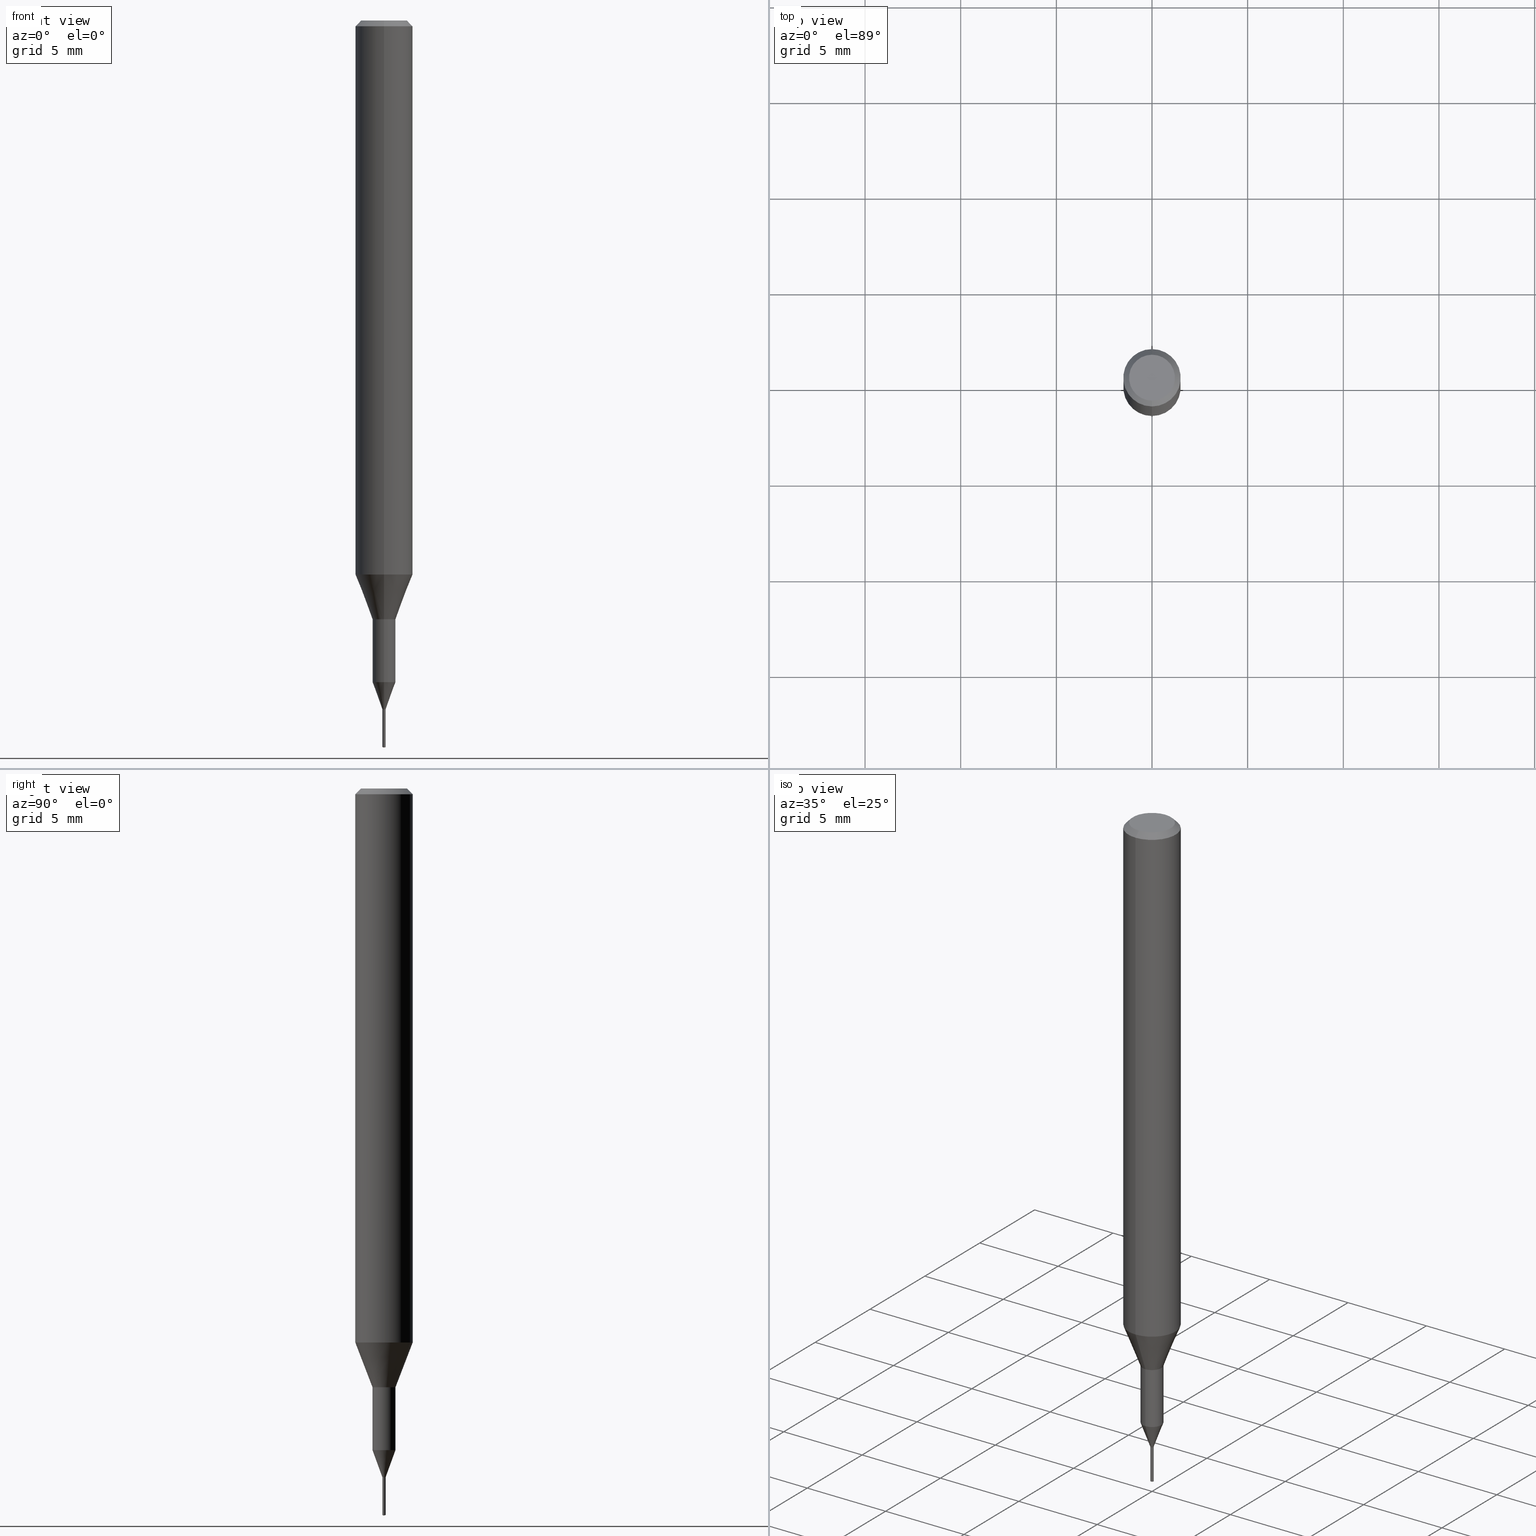
[diagram: canonical four-view strip — front | top / right | iso, engineering-drawing reading convention]
A machine part, canonical four-view strip (front | top / right | iso — engineering-drawing reading convention). The complete STEP part file that produces these views, byte-faithful:
ISO-10303-21;
HEADER;
FILE_DESCRIPTION(('no description'),'unknown implementation level');
FILE_NAME('C-UMD2017-020-Huellk.stp','  ',('CIMSOURCE GmbH'),('CADClick - KiM GmbH - www.kimweb.de'),'unknown preprocess','ACIS','unknown authorization');
FILE_SCHEMA(('automotive_design'));
ENDSEC;
DATA;
#1=MECHANICAL_DESIGN_GEOMETRIC_PRESENTATION_REPRESENTATION(' ',(#14,#15,#16,#17,#18,#19,#20,#21,#22,#23,#24,#25,#26,#27,#28,#29,#30,#31,#32,#33,#34,#35,#36,#37,#38,#39,#40,#41,#42,#43,#44,#45,#46,#47,#48,#49,#50,#51,#52,#53,#54,#55,#56,#57,#58,#59,#60,#61,#62,#63,#64,#65,#66,#67,#68,#69,#70,#71,#72,#73,#74,#75,#76,#77,#78,#79,#80,#81,#82,#83,#84,#85,#86,#87,#88,#89,#90,#91,#92),#10);
#2=PRODUCT_DEFINITION_CONTEXT('',#93,'design');
#3=APPLICATION_PROTOCOL_DEFINITION('INTERNATIONAL STANDARD','automotive_design',1994,#93);
#4=PRODUCT_CATEGORY_RELATIONSHIP('NONE','NONE',#94,#95);
#5=SHAPE_DEFINITION_REPRESENTATION(#96,#97);
#6=PRODUCT_DEFINITION_CONTEXT('',#98,'design');
#7=APPLICATION_PROTOCOL_DEFINITION('INTERNATIONAL STANDARD','automotive_design',1994,#98);
#8=PRODUCT_CATEGORY_RELATIONSHIP('NONE','NONE',#99,#100);
#9=SHAPE_DEFINITION_REPRESENTATION(#101,#102);
#10= (GEOMETRIC_REPRESENTATION_CONTEXT(3)GLOBAL_UNCERTAINTY_ASSIGNED_CONTEXT((#105))GLOBAL_UNIT_ASSIGNED_CONTEXT((#107,#108,#109))REPRESENTATION_CONTEXT('NONE','WORKSPACE'));
#14=STYLED_ITEM('',(#111),#112);
#15=STYLED_ITEM('',(#113),#114);
#16=STYLED_ITEM('',(#115),#116);
#17=STYLED_ITEM('',(#117),#118);
#18=STYLED_ITEM('',(#119),#120);
#19=STYLED_ITEM('',(#121),#122);
#20=STYLED_ITEM('',(#123),#124);
#21=STYLED_ITEM('',(#125),#126);
#22=STYLED_ITEM('',(#127),#128);
#23=STYLED_ITEM('',(#129),#130);
#24=STYLED_ITEM('',(#131),#132);
#25=STYLED_ITEM('',(#133),#134);
#26=STYLED_ITEM('',(#135),#136);
#27=STYLED_ITEM('',(#137),#138);
#28=STYLED_ITEM('',(#139),#140);
#29=STYLED_ITEM('',(#141),#142);
#30=STYLED_ITEM('',(#143),#144);
#31=STYLED_ITEM('',(#145),#146);
#32=STYLED_ITEM('',(#147),#148);
#33=STYLED_ITEM('',(#149),#150);
#34=STYLED_ITEM('',(#151),#152);
#35=STYLED_ITEM('',(#153),#154);
#36=STYLED_ITEM('',(#155),#156);
#37=STYLED_ITEM('',(#157),#158);
#38=STYLED_ITEM('',(#159),#160);
#39=STYLED_ITEM('',(#161),#162);
#40=STYLED_ITEM('',(#163),#164);
#41=STYLED_ITEM('',(#165),#166);
#42=STYLED_ITEM('',(#167),#168);
#43=STYLED_ITEM('',(#169),#170);
#44=STYLED_ITEM('',(#171),#172);
#45=STYLED_ITEM('',(#173),#174);
#46=STYLED_ITEM('',(#175),#176);
#47=STYLED_ITEM('',(#177),#178);
#48=STYLED_ITEM('',(#179),#180);
#49=STYLED_ITEM('',(#181),#182);
#50=STYLED_ITEM('',(#183),#184);
#51=STYLED_ITEM('',(#185),#186);
#52=STYLED_ITEM('',(#187),#188);
#53=STYLED_ITEM('',(#189),#190);
#54=STYLED_ITEM('',(#191),#192);
#55=STYLED_ITEM('',(#193),#194);
#56=STYLED_ITEM('',(#195),#196);
#57=STYLED_ITEM('',(#197),#198);
#58=STYLED_ITEM('',(#199),#200);
#59=STYLED_ITEM('',(#201),#202);
#60=STYLED_ITEM('',(#203),#204);
#61=STYLED_ITEM('',(#205),#206);
#62=STYLED_ITEM('',(#207),#208);
#63=STYLED_ITEM('',(#209),#210);
#64=STYLED_ITEM('',(#211),#212);
#65=STYLED_ITEM('',(#213),#214);
#66=STYLED_ITEM('',(#215),#216);
#67=STYLED_ITEM('',(#217),#218);
#68=STYLED_ITEM('',(#219),#220);
#69=STYLED_ITEM('',(#221),#222);
#70=STYLED_ITEM('',(#223),#224);
#71=STYLED_ITEM('',(#225),#226);
#72=STYLED_ITEM('',(#227),#228);
#73=STYLED_ITEM('',(#229),#230);
#74=STYLED_ITEM('',(#231),#232);
#75=STYLED_ITEM('',(#233),#234);
#76=STYLED_ITEM('',(#235),#236);
#77=STYLED_ITEM('',(#237),#238);
#78=STYLED_ITEM('',(#239),#240);
#79=STYLED_ITEM('',(#241),#242);
#80=STYLED_ITEM('',(#243),#244);
#81=STYLED_ITEM('',(#245),#246);
#82=STYLED_ITEM('',(#247),#248);
#83=STYLED_ITEM('',(#249),#250);
#84=STYLED_ITEM('',(#251),#252);
#85=STYLED_ITEM('',(#253),#254);
#86=STYLED_ITEM('',(#255),#256);
#87=STYLED_ITEM('',(#257),#258);
#88=STYLED_ITEM('',(#259),#260);
#89=STYLED_ITEM('',(#261),#262);
#90=STYLED_ITEM('',(#263),#264);
#91=STYLED_ITEM('',(#265),#266);
#92=STYLED_ITEM('',(#267),#268);
#93=APPLICATION_CONTEXT(' ');
#94=PRODUCT_CATEGORY('part','NONE');
#95=PRODUCT_RELATED_PRODUCT_CATEGORY('detail',' ',(#269));
#96=PRODUCT_DEFINITION_SHAPE('NONE','NONE',#270);
#97=ADVANCED_BREP_SHAPE_REPRESENTATION('1',(#220,#271),#10);
#98=APPLICATION_CONTEXT(' ');
#99=PRODUCT_CATEGORY('part','NONE');
#100=PRODUCT_RELATED_PRODUCT_CATEGORY('detail',' ',(#272));
#101=PRODUCT_DEFINITION_SHAPE('NONE','NONE',#273);
#102=ADVANCED_BREP_SHAPE_REPRESENTATION('2',(#236,#274),#10);
#105=UNCERTAINTY_MEASURE_WITH_UNIT(LENGTH_MEASURE(1.0E-006),#107,'','');
#107= (CONVERSION_BASED_UNIT('MILLIMETRE',#277)LENGTH_UNIT()NAMED_UNIT(#280));
#108= (NAMED_UNIT(#282)PLANE_ANGLE_UNIT()SI_UNIT($,.RADIAN.));
#109= (NAMED_UNIT(#282)SOLID_ANGLE_UNIT()SI_UNIT($,.STERADIAN.));
#111=PRESENTATION_STYLE_ASSIGNMENT((#288));
#112=EDGE_CURVE('',#268,#134,#289,.T.);
#113=PRESENTATION_STYLE_ASSIGNMENT((#290));
#114=EDGE_CURVE('',#154,#240,#291,.T.);
#115=PRESENTATION_STYLE_ASSIGNMENT((#292));
#116=EDGE_CURVE('',#254,#266,#293,.T.);
#117=PRESENTATION_STYLE_ASSIGNMENT((#294));
#118=ADVANCED_FACE('',(#295),#296,.T.);
#119=PRESENTATION_STYLE_ASSIGNMENT((#297));
#120=ADVANCED_FACE('',(#298),#299,.T.);
#121=PRESENTATION_STYLE_ASSIGNMENT((#300));
#122=EDGE_CURVE('',#160,#138,#301,.T.);
#123=PRESENTATION_STYLE_ASSIGNMENT((#302));
#124=ADVANCED_FACE('',(#303),#304,.T.);
#125=PRESENTATION_STYLE_ASSIGNMENT((#305));
#126=EDGE_CURVE('',#226,#254,#306,.T.);
#127=PRESENTATION_STYLE_ASSIGNMENT((#307));
#128=EDGE_CURVE('',#246,#160,#308,.T.);
#129=PRESENTATION_STYLE_ASSIGNMENT((#309));
#130=VERTEX_POINT('',#310);
#131=PRESENTATION_STYLE_ASSIGNMENT((#311));
#132=EDGE_CURVE('',#178,#240,#312,.T.);
#133=PRESENTATION_STYLE_ASSIGNMENT((#313));
#134=VERTEX_POINT('',#314);
#135=PRESENTATION_STYLE_ASSIGNMENT((#315));
#136=EDGE_CURVE('',#178,#238,#316,.T.);
#137=PRESENTATION_STYLE_ASSIGNMENT((#317));
#138=VERTEX_POINT('',#318);
#139=PRESENTATION_STYLE_ASSIGNMENT((#319));
#140=EDGE_CURVE('',#176,#178,#320,.T.);
#141=PRESENTATION_STYLE_ASSIGNMENT((#321));
#142=EDGE_CURVE('',#164,#176,#322,.T.);
#143=PRESENTATION_STYLE_ASSIGNMENT((#323));
#144=EDGE_CURVE('',#130,#226,#324,.T.);
#145=PRESENTATION_STYLE_ASSIGNMENT((#325));
#146=EDGE_CURVE('',#134,#268,#326,.T.);
#147=PRESENTATION_STYLE_ASSIGNMENT((#327));
#148=EDGE_CURVE('',#170,#224,#328,.T.);
#149=PRESENTATION_STYLE_ASSIGNMENT((#329));
#150=ADVANCED_FACE('',(#330),#331,.T.);
#151=PRESENTATION_STYLE_ASSIGNMENT((#332));
#152=ADVANCED_FACE('',(#333),#334,.T.);
#153=PRESENTATION_STYLE_ASSIGNMENT((#335));
#154=VERTEX_POINT('',#336);
#155=PRESENTATION_STYLE_ASSIGNMENT((#337));
#156=EDGE_CURVE('',#226,#224,#338,.T.);
#157=PRESENTATION_STYLE_ASSIGNMENT((#339));
#158=EDGE_CURVE('',#254,#226,#340,.T.);
#159=PRESENTATION_STYLE_ASSIGNMENT((#341));
#160=VERTEX_POINT('',#342);
#161=PRESENTATION_STYLE_ASSIGNMENT((#343));
#162=EDGE_CURVE('',#160,#200,#344,.T.);
#163=PRESENTATION_STYLE_ASSIGNMENT((#345));
#164=VERTEX_POINT('',#346);
#165=PRESENTATION_STYLE_ASSIGNMENT((#347));
#166=EDGE_CURVE('',#138,#190,#348,.T.);
#167=PRESENTATION_STYLE_ASSIGNMENT((#349));
#168=ADVANCED_FACE('',(#350),#351,.T.);
#169=PRESENTATION_STYLE_ASSIGNMENT((#352));
#170=VERTEX_POINT('',#353);
#171=PRESENTATION_STYLE_ASSIGNMENT((#354));
#172=ADVANCED_FACE('',(#355),#356,.T.);
#173=PRESENTATION_STYLE_ASSIGNMENT((#357));
#174=EDGE_CURVE('',#190,#212,#358,.T.);
#175=PRESENTATION_STYLE_ASSIGNMENT((#359));
#176=VERTEX_POINT('',#360);
#177=PRESENTATION_STYLE_ASSIGNMENT((#361));
#178=VERTEX_POINT('',#362);
#179=PRESENTATION_STYLE_ASSIGNMENT((#363));
#180=EDGE_CURVE('',#190,#246,#364,.T.);
#181=PRESENTATION_STYLE_ASSIGNMENT((#365));
#182=EDGE_CURVE('',#238,#164,#366,.T.);
#183=PRESENTATION_STYLE_ASSIGNMENT((#367));
#184=EDGE_CURVE('',#212,#202,#368,.T.);
#185=PRESENTATION_STYLE_ASSIGNMENT((#369));
#186=EDGE_CURVE('',#224,#170,#370,.T.);
#187=PRESENTATION_STYLE_ASSIGNMENT((#371));
#188=EDGE_CURVE('',#238,#178,#372,.T.);
#189=PRESENTATION_STYLE_ASSIGNMENT((#373));
#190=VERTEX_POINT('',#374);
#191=PRESENTATION_STYLE_ASSIGNMENT((#375));
#192=EDGE_CURVE('',#202,#212,#376,.T.);
#193=PRESENTATION_STYLE_ASSIGNMENT((#377));
#194=ADVANCED_FACE('',(#378),#379,.T.);
#195=PRESENTATION_STYLE_ASSIGNMENT((#380));
#196=ADVANCED_FACE('',(#381),#382,.T.);
#197=PRESENTATION_STYLE_ASSIGNMENT((#383));
#198=EDGE_CURVE('',#154,#238,#384,.T.);
#199=PRESENTATION_STYLE_ASSIGNMENT((#385));
#200=VERTEX_POINT('',#386);
#201=PRESENTATION_STYLE_ASSIGNMENT((#387));
#202=VERTEX_POINT('',#388);
#203=PRESENTATION_STYLE_ASSIGNMENT((#389));
#204=EDGE_CURVE('',#130,#266,#390,.T.);
#205=PRESENTATION_STYLE_ASSIGNMENT((#391));
#206=EDGE_CURVE('',#138,#160,#392,.T.);
#207=PRESENTATION_STYLE_ASSIGNMENT((#393));
#208=ADVANCED_FACE('',(#394),#395,.T.);
#209=PRESENTATION_STYLE_ASSIGNMENT((#396));
#210=EDGE_CURVE('',#176,#164,#397,.T.);
#211=PRESENTATION_STYLE_ASSIGNMENT((#398));
#212=VERTEX_POINT('',#399);
#213=PRESENTATION_STYLE_ASSIGNMENT((#400));
#214=ADVANCED_FACE('',(#401),#402,.T.);
#215=PRESENTATION_STYLE_ASSIGNMENT((#403));
#216=ADVANCED_FACE('',(#404),#405,.T.);
#217=PRESENTATION_STYLE_ASSIGNMENT((#406));
#218=EDGE_CURVE('',#266,#130,#407,.T.);
#219=PRESENTATION_STYLE_ASSIGNMENT((#408));
#220=MANIFOLD_SOLID_BREP('1',#409);
#221=PRESENTATION_STYLE_ASSIGNMENT((#410));
#222=EDGE_CURVE('',#170,#254,#411,.T.);
#223=PRESENTATION_STYLE_ASSIGNMENT((#412));
#224=VERTEX_POINT('',#413);
#225=PRESENTATION_STYLE_ASSIGNMENT((#414));
#226=VERTEX_POINT('',#415);
#227=PRESENTATION_STYLE_ASSIGNMENT((#416));
#228=EDGE_CURVE('',#200,#138,#417,.T.);
#229=PRESENTATION_STYLE_ASSIGNMENT((#418));
#230=EDGE_CURVE('',#246,#190,#419,.T.);
#231=PRESENTATION_STYLE_ASSIGNMENT((#420));
#232=ADVANCED_FACE('',(#421,#422),#423,.T.);
#233=PRESENTATION_STYLE_ASSIGNMENT((#424));
#234=EDGE_CURVE('',#240,#154,#425,.T.);
#235=PRESENTATION_STYLE_ASSIGNMENT((#426));
#236=MANIFOLD_SOLID_BREP('2',#427);
#237=PRESENTATION_STYLE_ASSIGNMENT((#428));
#238=VERTEX_POINT('',#429);
#239=PRESENTATION_STYLE_ASSIGNMENT((#430));
#240=VERTEX_POINT('',#431);
#241=PRESENTATION_STYLE_ASSIGNMENT((#432));
#242=EDGE_CURVE('',#164,#268,#433,.T.);
#243=PRESENTATION_STYLE_ASSIGNMENT((#434));
#244=ADVANCED_FACE('',(#435),#436,.T.);
#245=PRESENTATION_STYLE_ASSIGNMENT((#437));
#246=VERTEX_POINT('',#438);
#247=PRESENTATION_STYLE_ASSIGNMENT((#439));
#248=EDGE_CURVE('',#134,#176,#440,.T.);
#249=PRESENTATION_STYLE_ASSIGNMENT((#441));
#250=ADVANCED_FACE('',(#442),#443,.T.);
#251=PRESENTATION_STYLE_ASSIGNMENT((#444));
#252=EDGE_CURVE('',#202,#246,#445,.T.);
#253=PRESENTATION_STYLE_ASSIGNMENT((#446));
#254=VERTEX_POINT('',#447);
#255=PRESENTATION_STYLE_ASSIGNMENT((#448));
#256=ADVANCED_FACE('',(#449),#450,.T.);
#257=PRESENTATION_STYLE_ASSIGNMENT((#451));
#258=ADVANCED_FACE('',(#452),#453,.T.);
#259=PRESENTATION_STYLE_ASSIGNMENT((#454));
#260=ADVANCED_FACE('',(#455),#456,.T.);
#261=PRESENTATION_STYLE_ASSIGNMENT((#457));
#262=ADVANCED_FACE('',(#458),#459,.T.);
#263=PRESENTATION_STYLE_ASSIGNMENT((#460));
#264=ADVANCED_FACE('',(#461),#462,.T.);
#265=PRESENTATION_STYLE_ASSIGNMENT((#463));
#266=VERTEX_POINT('',#464);
#267=PRESENTATION_STYLE_ASSIGNMENT((#465));
#268=VERTEX_POINT('',#466);
#269=PRODUCT('1','1','PART-1-DESC',(#467));
#270=PRODUCT_DEFINITION('NONE','NONE',#468,#2);
#271=AXIS2_PLACEMENT_3D('',#469,#470,#471);
#272=PRODUCT('2','2','PART-2-DESC',(#472));
#273=PRODUCT_DEFINITION('NONE','NONE',#473,#6);
#274=AXIS2_PLACEMENT_3D('',#474,#475,#476);
#277=LENGTH_MEASURE_WITH_UNIT(LENGTH_MEASURE(1.0),#477);
#280=DIMENSIONAL_EXPONENTS(1.0,0.0,0.0,0.0,0.0,0.0,0.0);
#282=DIMENSIONAL_EXPONENTS(0.0,0.0,0.0,0.0,0.0,0.0,0.0);
#288=CURVE_STYLE('',#478,POSITIVE_LENGTH_MEASURE(1.0E-006),#479);
#289=CIRCLE('',#480,1.2);
#290=CURVE_STYLE('',#481,POSITIVE_LENGTH_MEASURE(1.0E-006),#482);
#291=CIRCLE('',#483,0.6);
#292=CURVE_STYLE('',#484,POSITIVE_LENGTH_MEASURE(1.0E-006),#485);
#293=LINE('',#486,#487);
#294=SURFACE_STYLE_USAGE(.BOTH.,#488);
#295=FACE_OUTER_BOUND('',#489,.T.);
#296=CONICAL_SURFACE('',#490,0.0425,1.30899695388712);
#297=SURFACE_STYLE_USAGE(.BOTH.,#491);
#298=FACE_OUTER_BOUND('',#492,.T.);
#299=PLANE('',#493);
#300=CURVE_STYLE('',#494,POSITIVE_LENGTH_MEASURE(1.0E-006),#495);
#301=CIRCLE('',#496,0.085);
#302=SURFACE_STYLE_USAGE(.BOTH.,#497);
#303=FACE_OUTER_BOUND('',#498,.T.);
#304=CONICAL_SURFACE('',#499,1.35,0.785398163397447);
#305=CURVE_STYLE('',#500,POSITIVE_LENGTH_MEASURE(1.0E-006),#501);
#306=CIRCLE('',#502,0.59995);
#307=CURVE_STYLE('',#503,POSITIVE_LENGTH_MEASURE(1.0E-006),#504);
#308=LINE('',#505,#506);
#309=POINT_STYLE(' ',#507,POSITIVE_LENGTH_MEASURE(1.0E-006),#508);
#310=CARTESIAN_POINT('',(0.0,0.59995,-31.3));
#311=CURVE_STYLE('',#509,POSITIVE_LENGTH_MEASURE(1.0E-006),#510);
#312=LINE('',#511,#512);
#313=POINT_STYLE(' ',#513,POSITIVE_LENGTH_MEASURE(1.0E-006),#514);
#314=CARTESIAN_POINT('',(0.0,1.2,0.0));
#315=CURVE_STYLE('',#515,POSITIVE_LENGTH_MEASURE(1.0E-006),#516);
#316=CIRCLE('',#517,1.5);
#317=POINT_STYLE(' ',#518,POSITIVE_LENGTH_MEASURE(1.0E-006),#519);
#318=CARTESIAN_POINT('',(0.085,1.04091540074902E-017,-37.97722432));
#319=CURVE_STYLE('',#520,POSITIVE_LENGTH_MEASURE(1.0E-006),#521);
#320=LINE('',#522,#523);
#321=CURVE_STYLE('',#524,POSITIVE_LENGTH_MEASURE(1.0E-006),#525);
#322=CIRCLE('',#526,1.5);
#323=CURVE_STYLE('',#527,POSITIVE_LENGTH_MEASURE(1.0E-006),#528);
#324=LINE('',#529,#530);
#325=CURVE_STYLE('',#531,POSITIVE_LENGTH_MEASURE(1.0E-006),#532);
#326=CIRCLE('',#533,1.2);
#327=CURVE_STYLE('',#534,POSITIVE_LENGTH_MEASURE(1.0E-006),#535);
#328=CIRCLE('',#536,0.0850363922261483);
#329=SURFACE_STYLE_USAGE(.BOTH.,#537);
#330=FACE_OUTER_BOUND('',#538,.T.);
#331=CYLINDRICAL_SURFACE('',#539,0.59995);
#332=SURFACE_STYLE_USAGE(.BOTH.,#540);
#333=FACE_OUTER_BOUND('',#541,.T.);
#334=PLANE('',#542);
#335=POINT_STYLE(' ',#543,POSITIVE_LENGTH_MEASURE(1.0E-006),#544);
#336=CARTESIAN_POINT('',(7.34763812293426E-017,-0.6,-31.3));
#337=CURVE_STYLE('',#545,POSITIVE_LENGTH_MEASURE(1.0E-006),#546);
#338=LINE('',#547,#548);
#339=CURVE_STYLE('',#549,POSITIVE_LENGTH_MEASURE(1.0E-006),#550);
#340=CIRCLE('',#551,0.59995);
#341=POINT_STYLE(' ',#552,POSITIVE_LENGTH_MEASURE(1.0E-006),#553);
#342=CARTESIAN_POINT('',(-0.085,0.0,-37.97722432));
#343=CURVE_STYLE('',#554,POSITIVE_LENGTH_MEASURE(1.0E-006),#555);
#344=LINE('',#556,#557);
#345=POINT_STYLE(' ',#558,POSITIVE_LENGTH_MEASURE(1.0E-006),#559);
#346=CARTESIAN_POINT('',(1.83690953073357E-016,-1.5,-0.300000000000001));
#347=CURVE_STYLE('',#560,POSITIVE_LENGTH_MEASURE(1.0E-006),#561);
#348=LINE('',#562,#563);
#349=SURFACE_STYLE_USAGE(.BOTH.,#564);
#350=FACE_OUTER_BOUND('',#565,.T.);
#351=CONICAL_SURFACE('',#566,1.05,0.366459241971866);
#352=POINT_STYLE(' ',#567,POSITIVE_LENGTH_MEASURE(1.0E-006),#568);
#353=CARTESIAN_POINT('',(1.04136106226273E-017,-0.0850363922261483,-35.9999));
#354=SURFACE_STYLE_USAGE(.BOTH.,#569);
#355=FACE_OUTER_BOUND('',#570,.T.);
#356=CONICAL_SURFACE('',#571,0.0425,1.30899695388712);
#357=CURVE_STYLE('',#572,POSITIVE_LENGTH_MEASURE(1.0E-006),#573);
#358=LINE('',#574,#575);
#359=POINT_STYLE(' ',#576,POSITIVE_LENGTH_MEASURE(1.0E-006),#577);
#360=CARTESIAN_POINT('',(0.0,1.5,-0.300000000000001));
#361=POINT_STYLE(' ',#578,POSITIVE_LENGTH_MEASURE(1.0E-006),#579);
#362=CARTESIAN_POINT('',(0.0,1.5,-28.955));
#363=CURVE_STYLE('',#580,POSITIVE_LENGTH_MEASURE(1.0E-006),#581);
#364=CIRCLE('',#582,0.085);
#365=CURVE_STYLE('',#583,POSITIVE_LENGTH_MEASURE(1.0E-006),#584);
#366=LINE('',#585,#586);
#367=CURVE_STYLE('',#587,POSITIVE_LENGTH_MEASURE(1.0E-006),#588);
#368=CIRCLE('',#589,0.0860363957597172);
#369=CURVE_STYLE('',#590,POSITIVE_LENGTH_MEASURE(1.0E-006),#591);
#370=CIRCLE('',#592,0.0850363922261483);
#371=CURVE_STYLE('',#593,POSITIVE_LENGTH_MEASURE(1.0E-006),#594);
#372=CIRCLE('',#595,1.5);
#373=POINT_STYLE(' ',#596,POSITIVE_LENGTH_MEASURE(1.0E-006),#597);
#374=CARTESIAN_POINT('',(0.085,1.04091540074902E-017,-36.0));
#375=CURVE_STYLE('',#598,POSITIVE_LENGTH_MEASURE(1.0E-006),#599);
#376=CIRCLE('',#600,0.0860363957597172);
#377=SURFACE_STYLE_USAGE(.BOTH.,#601);
#378=FACE_OUTER_BOUND('',#602,.T.);
#379=CONICAL_SURFACE('',#603,1.05,0.366459241971866);
#380=SURFACE_STYLE_USAGE(.BOTH.,#604);
#381=FACE_OUTER_BOUND('',#605,.T.);
#382=PLANE('',#606);
#383=CURVE_STYLE('',#607,POSITIVE_LENGTH_MEASURE(1.0E-006),#608);
#384=LINE('',#609,#610);
#385=POINT_STYLE(' ',#611,POSITIVE_LENGTH_MEASURE(1.0E-006),#612);
#386=CARTESIAN_POINT('',(0.0,0.0,-38.0));
#387=POINT_STYLE(' ',#613,POSITIVE_LENGTH_MEASURE(1.0E-006),#614);
#388=CARTESIAN_POINT('',(-0.0860363957597172,0.0,-35.9999));
#389=CURVE_STYLE('',#615,POSITIVE_LENGTH_MEASURE(1.0E-006),#616);
#390=CIRCLE('',#617,0.59995);
#391=CURVE_STYLE('',#618,POSITIVE_LENGTH_MEASURE(1.0E-006),#619);
#392=CIRCLE('',#620,0.085);
#393=SURFACE_STYLE_USAGE(.BOTH.,#621);
#394=FACE_OUTER_BOUND('',#622,.T.);
#395=CONICAL_SURFACE('',#623,1.35,0.785398163397447);
#396=CURVE_STYLE('',#624,POSITIVE_LENGTH_MEASURE(1.0E-006),#625);
#397=CIRCLE('',#626,1.5);
#398=POINT_STYLE(' ',#627,POSITIVE_LENGTH_MEASURE(1.0E-006),#628);
#399=CARTESIAN_POINT('',(0.0860363957597172,1.05360716907326E-017,-35.9999));
#400=SURFACE_STYLE_USAGE(.BOTH.,#629);
#401=FACE_OUTER_BOUND('',#630,.T.);
#402=CONICAL_SURFACE('',#631,0.0855181978798586,1.4746058624187);
#403=SURFACE_STYLE_USAGE(.BOTH.,#632);
#404=FACE_OUTER_BOUND('',#633,.T.);
#405=CONICAL_SURFACE('',#634,0.342493196113074,0.349023488713125);
#406=CURVE_STYLE('',#635,POSITIVE_LENGTH_MEASURE(1.0E-006),#636);
#407=CIRCLE('',#637,0.59995);
#408=SURFACE_STYLE_USAGE(.BOTH.,#638);
#409=CLOSED_SHELL('',(#216,#150,#168,#262,#124,#152,#208,#260,#194,#232,#256,#258,#196));
#410=CURVE_STYLE('',#639,POSITIVE_LENGTH_MEASURE(1.0E-006),#640);
#411=LINE('',#641,#642);
#412=POINT_STYLE(' ',#643,POSITIVE_LENGTH_MEASURE(1.0E-006),#644);
#413=CARTESIAN_POINT('',(0.0,0.0850363922261483,-35.9999));
#414=POINT_STYLE(' ',#645,POSITIVE_LENGTH_MEASURE(1.0E-006),#646);
#415=CARTESIAN_POINT('',(0.0,0.59995,-34.585));
#416=CURVE_STYLE('',#647,POSITIVE_LENGTH_MEASURE(1.0E-006),#648);
#417=LINE('',#649,#650);
#418=CURVE_STYLE('',#651,POSITIVE_LENGTH_MEASURE(1.0E-006),#652);
#419=CIRCLE('',#653,0.085);
#420=SURFACE_STYLE_USAGE(.BOTH.,#654);
#421=FACE_BOUND('',#655,.T.);
#422=FACE_OUTER_BOUND('',#656,.T.);
#423=PLANE('',#657);
#424=CURVE_STYLE('',#658,POSITIVE_LENGTH_MEASURE(1.0E-006),#659);
#425=CIRCLE('',#660,0.6);
#426=SURFACE_STYLE_USAGE(.BOTH.,#661);
#427=CLOSED_SHELL('',(#118,#264,#250,#120,#214,#244,#172));
#428=POINT_STYLE(' ',#662,POSITIVE_LENGTH_MEASURE(1.0E-006),#663);
#429=CARTESIAN_POINT('',(1.83690953073357E-016,-1.5,-28.955));
#430=POINT_STYLE(' ',#664,POSITIVE_LENGTH_MEASURE(1.0E-006),#665);
#431=CARTESIAN_POINT('',(0.0,0.6,-31.3));
#432=CURVE_STYLE('',#666,POSITIVE_LENGTH_MEASURE(1.0E-006),#667);
#433=LINE('',#668,#669);
#434=SURFACE_STYLE_USAGE(.BOTH.,#670);
#435=FACE_OUTER_BOUND('',#671,.T.);
#436=CYLINDRICAL_SURFACE('',#672,0.085);
#437=POINT_STYLE(' ',#673,POSITIVE_LENGTH_MEASURE(1.0E-006),#674);
#438=CARTESIAN_POINT('',(-0.085,0.0,-36.0));
#439=CURVE_STYLE('',#675,POSITIVE_LENGTH_MEASURE(1.0E-006),#676);
#440=LINE('',#677,#678);
#441=SURFACE_STYLE_USAGE(.BOTH.,#679);
#442=FACE_OUTER_BOUND('',#680,.T.);
#443=CONICAL_SURFACE('',#681,0.0855181978798586,1.4746058624187);
#444=CURVE_STYLE('',#682,POSITIVE_LENGTH_MEASURE(1.0E-006),#683);
#445=LINE('',#684,#685);
#446=POINT_STYLE(' ',#686,POSITIVE_LENGTH_MEASURE(1.0E-006),#687);
#447=CARTESIAN_POINT('',(7.34702581975735E-017,-0.59995,-34.585));
#448=SURFACE_STYLE_USAGE(.BOTH.,#688);
#449=FACE_OUTER_BOUND('',#689,.T.);
#450=CYLINDRICAL_SURFACE('',#690,0.59995);
#451=SURFACE_STYLE_USAGE(.BOTH.,#691);
#452=FACE_OUTER_BOUND('',#692,.T.);
#453=CONICAL_SURFACE('',#693,0.342493196113074,0.349023488713125);
#454=SURFACE_STYLE_USAGE(.BOTH.,#694);
#455=FACE_OUTER_BOUND('',#695,.T.);
#456=CYLINDRICAL_SURFACE('',#696,1.5);
#457=SURFACE_STYLE_USAGE(.BOTH.,#697);
#458=FACE_OUTER_BOUND('',#698,.T.);
#459=CYLINDRICAL_SURFACE('',#699,1.5);
#460=SURFACE_STYLE_USAGE(.BOTH.,#700);
#461=FACE_OUTER_BOUND('',#701,.T.);
#462=CYLINDRICAL_SURFACE('',#702,0.085);
#463=POINT_STYLE(' ',#703,POSITIVE_LENGTH_MEASURE(1.0E-006),#704);
#464=CARTESIAN_POINT('',(7.34702581975735E-017,-0.59995,-31.3));
#465=POINT_STYLE(' ',#705,POSITIVE_LENGTH_MEASURE(1.0E-006),#706);
#466=CARTESIAN_POINT('',(1.46952762458685E-016,-1.2,0.0));
#467=PRODUCT_CONTEXT('',#93,'mechanical');
#468=PRODUCT_DEFINITION_FORMATION_WITH_SPECIFIED_SOURCE(' ','NONE',#269,.NOT_KNOWN.);
#469=CARTESIAN_POINT('',(0.0,0.0,0.0));
#470=DIRECTION('',(0.0,0.0,1.0));
#471=DIRECTION('',(1.0,0.0,0.0));
#472=PRODUCT_CONTEXT('',#98,'mechanical');
#473=PRODUCT_DEFINITION_FORMATION_WITH_SPECIFIED_SOURCE(' ','NONE',#272,.NOT_KNOWN.);
#474=CARTESIAN_POINT('',(0.0,0.0,0.0));
#475=DIRECTION('',(0.0,0.0,1.0));
#476=DIRECTION('',(1.0,0.0,0.0));
#477= (NAMED_UNIT(#280)LENGTH_UNIT()SI_UNIT(.MILLI.,.METRE.));
#478=DRAUGHTING_PRE_DEFINED_CURVE_FONT('continuous');
#479=COLOUR_RGB('',0.498039215803146,0.498039215803146,0.498039215803146);
#480=AXIS2_PLACEMENT_3D('',#708,#709,#710);
#481=DRAUGHTING_PRE_DEFINED_CURVE_FONT('continuous');
#482=COLOUR_RGB('',0.498039215803146,0.498039215803146,0.498039215803146);
#483=AXIS2_PLACEMENT_3D('',#711,#712,#713);
#484=DRAUGHTING_PRE_DEFINED_CURVE_FONT('continuous');
#485=COLOUR_RGB('',0.498039215803146,0.498039215803146,0.498039215803146);
#486=CARTESIAN_POINT('',(7.34702581975735E-017,-0.59995,-32.9425));
#487=VECTOR('',#714,1.0);
#488=SURFACE_SIDE_STYLE('',(#715));
#489=EDGE_LOOP('',(#716,#717,#718));
#490=AXIS2_PLACEMENT_3D('',#719,#720,#721);
#491=SURFACE_SIDE_STYLE('',(#722));
#492=EDGE_LOOP('',(#723,#724));
#493=AXIS2_PLACEMENT_3D('',#725,#726,#727);
#494=DRAUGHTING_PRE_DEFINED_CURVE_FONT('continuous');
#495=COLOUR_RGB('',0.800000011920929,0.800000011920929,0.800000011920929);
#496=AXIS2_PLACEMENT_3D('',#728,#729,#730);
#497=SURFACE_SIDE_STYLE('',(#731));
#498=EDGE_LOOP('',(#732,#733,#734,#735));
#499=AXIS2_PLACEMENT_3D('',#736,#737,#738);
#500=DRAUGHTING_PRE_DEFINED_CURVE_FONT('continuous');
#501=COLOUR_RGB('',0.498039215803146,0.498039215803146,0.498039215803146);
#502=AXIS2_PLACEMENT_3D('',#739,#740,#741);
#503=DRAUGHTING_PRE_DEFINED_CURVE_FONT('continuous');
#504=COLOUR_RGB('',0.800000011920929,0.800000011920929,0.800000011920929);
#505=CARTESIAN_POINT('',(-0.085,-1.04091540074902E-017,-36.98861216));
#506=VECTOR('',#742,1.0);
#507=PRE_DEFINED_MARKER('');
#508=COLOUR_RGB('',0.498039215803146,0.498039215803146,0.498039215803146);
#509=DRAUGHTING_PRE_DEFINED_CURVE_FONT('continuous');
#510=COLOUR_RGB('',0.498039215803146,0.498039215803146,0.498039215803146);
#511=CARTESIAN_POINT('',(-1.2858366715135E-016,1.05,-30.1275));
#512=VECTOR('',#743,1.0);
#513=PRE_DEFINED_MARKER('');
#514=COLOUR_RGB('',0.498039215803146,0.498039215803146,0.498039215803146);
#515=DRAUGHTING_PRE_DEFINED_CURVE_FONT('continuous');
#516=COLOUR_RGB('',0.498039215803146,0.498039215803146,0.498039215803146);
#517=AXIS2_PLACEMENT_3D('',#744,#745,#746);
#518=PRE_DEFINED_MARKER('');
#519=COLOUR_RGB('',0.800000011920929,0.800000011920929,0.800000011920929);
#520=DRAUGHTING_PRE_DEFINED_CURVE_FONT('continuous');
#521=COLOUR_RGB('',0.498039215803146,0.498039215803146,0.498039215803146);
#522=CARTESIAN_POINT('',(-1.83690953073357E-016,1.5,-14.6275));
#523=VECTOR('',#747,1.0);
#524=DRAUGHTING_PRE_DEFINED_CURVE_FONT('continuous');
#525=COLOUR_RGB('',0.498039215803146,0.498039215803146,0.498039215803146);
#526=AXIS2_PLACEMENT_3D('',#748,#749,#750);
#527=DRAUGHTING_PRE_DEFINED_CURVE_FONT('continuous');
#528=COLOUR_RGB('',0.498039215803146,0.498039215803146,0.498039215803146);
#529=CARTESIAN_POINT('',(-7.34702581975735E-017,0.59995,-32.9425));
#530=VECTOR('',#751,1.0);
#531=DRAUGHTING_PRE_DEFINED_CURVE_FONT('continuous');
#532=COLOUR_RGB('',0.498039215803146,0.498039215803146,0.498039215803146);
#533=AXIS2_PLACEMENT_3D('',#752,#753,#754);
#534=DRAUGHTING_PRE_DEFINED_CURVE_FONT('continuous');
#535=COLOUR_RGB('',0.498039215803146,0.498039215803146,0.498039215803146);
#536=AXIS2_PLACEMENT_3D('',#755,#756,#757);
#537=SURFACE_SIDE_STYLE('',(#758));
#538=EDGE_LOOP('',(#759,#760,#761,#762));
#539=AXIS2_PLACEMENT_3D('',#763,#764,#765);
#540=SURFACE_SIDE_STYLE('',(#766));
#541=EDGE_LOOP('',(#767,#768));
#542=AXIS2_PLACEMENT_3D('',#769,#770,#771);
#543=PRE_DEFINED_MARKER('');
#544=COLOUR_RGB('',0.498039215803146,0.498039215803146,0.498039215803146);
#545=DRAUGHTING_PRE_DEFINED_CURVE_FONT('continuous');
#546=COLOUR_RGB('',0.498039215803146,0.498039215803146,0.498039215803146);
#547=CARTESIAN_POINT('',(-4.19419344101004E-017,0.342493196113074,-35.29245));
#548=VECTOR('',#772,1.0);
#549=DRAUGHTING_PRE_DEFINED_CURVE_FONT('continuous');
#550=COLOUR_RGB('',0.498039215803146,0.498039215803146,0.498039215803146);
#551=AXIS2_PLACEMENT_3D('',#773,#774,#775);
#552=PRE_DEFINED_MARKER('');
#553=COLOUR_RGB('',0.800000011920929,0.800000011920929,0.800000011920929);
#554=DRAUGHTING_PRE_DEFINED_CURVE_FONT('continuous');
#555=COLOUR_RGB('',0.800000011920929,0.800000011920929,0.800000011920929);
#556=CARTESIAN_POINT('',(-0.0425,-5.2045770037451E-018,-37.98861216));
#557=VECTOR('',#776,1.0);
#558=PRE_DEFINED_MARKER('');
#559=COLOUR_RGB('',0.498039215803146,0.498039215803146,0.498039215803146);
#560=DRAUGHTING_PRE_DEFINED_CURVE_FONT('continuous');
#561=COLOUR_RGB('',0.800000011920929,0.800000011920929,0.800000011920929);
#562=CARTESIAN_POINT('',(0.085,1.04091540074902E-017,-36.98861216));
#563=VECTOR('',#777,1.0);
#564=SURFACE_SIDE_STYLE('',(#778));
#565=EDGE_LOOP('',(#779,#780,#781,#782));
#566=AXIS2_PLACEMENT_3D('',#783,#784,#785);
#567=PRE_DEFINED_MARKER('');
#568=COLOUR_RGB('',0.498039215803146,0.498039215803146,0.498039215803146);
#569=SURFACE_SIDE_STYLE('',(#786));
#570=EDGE_LOOP('',(#787,#788,#789));
#571=AXIS2_PLACEMENT_3D('',#790,#791,#792);
#572=DRAUGHTING_PRE_DEFINED_CURVE_FONT('continuous');
#573=COLOUR_RGB('',0.800000011920929,0.800000011920929,0.800000011920929);
#574=CARTESIAN_POINT('',(0.0855181978798586,1.04726128491114E-017,-35.99995));
#575=VECTOR('',#793,1.0);
#576=PRE_DEFINED_MARKER('');
#577=COLOUR_RGB('',0.498039215803146,0.498039215803146,0.498039215803146);
#578=PRE_DEFINED_MARKER('');
#579=COLOUR_RGB('',0.498039215803146,0.498039215803146,0.498039215803146);
#580=DRAUGHTING_PRE_DEFINED_CURVE_FONT('continuous');
#581=COLOUR_RGB('',0.800000011920929,0.800000011920929,0.800000011920929);
#582=AXIS2_PLACEMENT_3D('',#794,#795,#796);
#583=DRAUGHTING_PRE_DEFINED_CURVE_FONT('continuous');
#584=COLOUR_RGB('',0.498039215803146,0.498039215803146,0.498039215803146);
#585=CARTESIAN_POINT('',(1.83690953073357E-016,-1.5,-14.6275));
#586=VECTOR('',#797,1.0);
#587=DRAUGHTING_PRE_DEFINED_CURVE_FONT('continuous');
#588=COLOUR_RGB('',0.800000011920929,0.800000011920929,0.800000011920929);
#589=AXIS2_PLACEMENT_3D('',#798,#799,#800);
#590=DRAUGHTING_PRE_DEFINED_CURVE_FONT('continuous');
#591=COLOUR_RGB('',0.498039215803146,0.498039215803146,0.498039215803146);
#592=AXIS2_PLACEMENT_3D('',#801,#802,#803);
#593=DRAUGHTING_PRE_DEFINED_CURVE_FONT('continuous');
#594=COLOUR_RGB('',0.498039215803146,0.498039215803146,0.498039215803146);
#595=AXIS2_PLACEMENT_3D('',#804,#805,#806);
#596=PRE_DEFINED_MARKER('');
#597=COLOUR_RGB('',0.800000011920929,0.800000011920929,0.800000011920929);
#598=DRAUGHTING_PRE_DEFINED_CURVE_FONT('continuous');
#599=COLOUR_RGB('',0.800000011920929,0.800000011920929,0.800000011920929);
#600=AXIS2_PLACEMENT_3D('',#807,#808,#809);
#601=SURFACE_SIDE_STYLE('',(#810));
#602=EDGE_LOOP('',(#811,#812,#813,#814));
#603=AXIS2_PLACEMENT_3D('',#815,#816,#817);
#604=SURFACE_SIDE_STYLE('',(#818));
#605=EDGE_LOOP('',(#819,#820));
#606=AXIS2_PLACEMENT_3D('',#821,#822,#823);
#607=DRAUGHTING_PRE_DEFINED_CURVE_FONT('continuous');
#608=COLOUR_RGB('',0.498039215803146,0.498039215803146,0.498039215803146);
#609=CARTESIAN_POINT('',(1.2858366715135E-016,-1.05,-30.1275));
#610=VECTOR('',#824,1.0);
#611=PRE_DEFINED_MARKER('');
#612=COLOUR_RGB('',0.800000011920929,0.800000011920929,0.800000011920929);
#613=PRE_DEFINED_MARKER('');
#614=COLOUR_RGB('',0.800000011920929,0.800000011920929,0.800000011920929);
#615=DRAUGHTING_PRE_DEFINED_CURVE_FONT('continuous');
#616=COLOUR_RGB('',0.498039215803146,0.498039215803146,0.498039215803146);
#617=AXIS2_PLACEMENT_3D('',#825,#826,#827);
#618=DRAUGHTING_PRE_DEFINED_CURVE_FONT('continuous');
#619=COLOUR_RGB('',0.800000011920929,0.800000011920929,0.800000011920929);
#620=AXIS2_PLACEMENT_3D('',#828,#829,#830);
#621=SURFACE_SIDE_STYLE('',(#831));
#622=EDGE_LOOP('',(#832,#833,#834,#835));
#623=AXIS2_PLACEMENT_3D('',#836,#837,#838);
#624=DRAUGHTING_PRE_DEFINED_CURVE_FONT('continuous');
#625=COLOUR_RGB('',0.498039215803146,0.498039215803146,0.498039215803146);
#626=AXIS2_PLACEMENT_3D('',#839,#840,#841);
#627=PRE_DEFINED_MARKER('');
#628=COLOUR_RGB('',0.800000011920929,0.800000011920929,0.800000011920929);
#629=SURFACE_SIDE_STYLE('',(#842));
#630=EDGE_LOOP('',(#843,#844,#845,#846));
#631=AXIS2_PLACEMENT_3D('',#847,#848,#849);
#632=SURFACE_SIDE_STYLE('',(#850));
#633=EDGE_LOOP('',(#851,#852,#853,#854));
#634=AXIS2_PLACEMENT_3D('',#855,#856,#857);
#635=DRAUGHTING_PRE_DEFINED_CURVE_FONT('continuous');
#636=COLOUR_RGB('',0.498039215803146,0.498039215803146,0.498039215803146);
#637=AXIS2_PLACEMENT_3D('',#858,#859,#860);
#638=SURFACE_SIDE_STYLE('',(#861));
#639=DRAUGHTING_PRE_DEFINED_CURVE_FONT('continuous');
#640=COLOUR_RGB('',0.498039215803146,0.498039215803146,0.498039215803146);
#641=CARTESIAN_POINT('',(4.19419344101004E-017,-0.342493196113074,-35.29245));
#642=VECTOR('',#862,1.0);
#643=PRE_DEFINED_MARKER('');
#644=COLOUR_RGB('',0.498039215803146,0.498039215803146,0.498039215803146);
#645=PRE_DEFINED_MARKER('');
#646=COLOUR_RGB('',0.498039215803146,0.498039215803146,0.498039215803146);
#647=DRAUGHTING_PRE_DEFINED_CURVE_FONT('continuous');
#648=COLOUR_RGB('',0.800000011920929,0.800000011920929,0.800000011920929);
#649=CARTESIAN_POINT('',(0.0425,5.2045770037451E-018,-37.98861216));
#650=VECTOR('',#863,1.0);
#651=DRAUGHTING_PRE_DEFINED_CURVE_FONT('continuous');
#652=COLOUR_RGB('',0.800000011920929,0.800000011920929,0.800000011920929);
#653=AXIS2_PLACEMENT_3D('',#864,#865,#866);
#654=SURFACE_SIDE_STYLE('',(#867));
#655=EDGE_LOOP('',(#868,#869));
#656=EDGE_LOOP('',(#870,#871));
#657=AXIS2_PLACEMENT_3D('',#872,#873,#874);
#658=DRAUGHTING_PRE_DEFINED_CURVE_FONT('continuous');
#659=COLOUR_RGB('',0.498039215803146,0.498039215803146,0.498039215803146);
#660=AXIS2_PLACEMENT_3D('',#875,#876,#877);
#661=SURFACE_SIDE_STYLE('',(#878));
#662=PRE_DEFINED_MARKER('');
#663=COLOUR_RGB('',0.498039215803146,0.498039215803146,0.498039215803146);
#664=PRE_DEFINED_MARKER('');
#665=COLOUR_RGB('',0.498039215803146,0.498039215803146,0.498039215803146);
#666=DRAUGHTING_PRE_DEFINED_CURVE_FONT('continuous');
#667=COLOUR_RGB('',0.498039215803146,0.498039215803146,0.498039215803146);
#668=CARTESIAN_POINT('',(1.65321857766021E-016,-1.35,-0.149999999999999));
#669=VECTOR('',#879,1.0);
#670=SURFACE_SIDE_STYLE('',(#880));
#671=EDGE_LOOP('',(#881,#882,#883,#884));
#672=AXIS2_PLACEMENT_3D('',#885,#886,#887);
#673=PRE_DEFINED_MARKER('');
#674=COLOUR_RGB('',0.800000011920929,0.800000011920929,0.800000011920929);
#675=DRAUGHTING_PRE_DEFINED_CURVE_FONT('continuous');
#676=COLOUR_RGB('',0.498039215803146,0.498039215803146,0.498039215803146);
#677=CARTESIAN_POINT('',(-1.65321857766021E-016,1.35,-0.149999999999999));
#678=VECTOR('',#888,1.0);
#679=SURFACE_SIDE_STYLE('',(#889));
#680=EDGE_LOOP('',(#890,#891,#892,#893));
#681=AXIS2_PLACEMENT_3D('',#894,#895,#896);
#682=DRAUGHTING_PRE_DEFINED_CURVE_FONT('continuous');
#683=COLOUR_RGB('',0.800000011920929,0.800000011920929,0.800000011920929);
#684=CARTESIAN_POINT('',(-0.0855181978798586,-1.04726128491114E-017,-35.99995));
#685=VECTOR('',#897,1.0);
#686=PRE_DEFINED_MARKER('');
#687=COLOUR_RGB('',0.498039215803146,0.498039215803146,0.498039215803146);
#688=SURFACE_SIDE_STYLE('',(#898));
#689=EDGE_LOOP('',(#899,#900,#901,#902));
#690=AXIS2_PLACEMENT_3D('',#903,#904,#905);
#691=SURFACE_SIDE_STYLE('',(#906));
#692=EDGE_LOOP('',(#907,#908,#909,#910));
#693=AXIS2_PLACEMENT_3D('',#911,#912,#913);
#694=SURFACE_SIDE_STYLE('',(#914));
#695=EDGE_LOOP('',(#915,#916,#917,#918));
#696=AXIS2_PLACEMENT_3D('',#919,#920,#921);
#697=SURFACE_SIDE_STYLE('',(#922));
#698=EDGE_LOOP('',(#923,#924,#925,#926));
#699=AXIS2_PLACEMENT_3D('',#927,#928,#929);
#700=SURFACE_SIDE_STYLE('',(#930));
#701=EDGE_LOOP('',(#931,#932,#933,#934));
#702=AXIS2_PLACEMENT_3D('',#935,#936,#937);
#703=PRE_DEFINED_MARKER('');
#704=COLOUR_RGB('',0.498039215803146,0.498039215803146,0.498039215803146);
#705=PRE_DEFINED_MARKER('');
#706=COLOUR_RGB('',0.498039215803146,0.498039215803146,0.498039215803146);
#708=CARTESIAN_POINT('',(0.0,0.0,0.0));
#709=DIRECTION('',(0.0,0.0,-1.0));
#710=DIRECTION('',(0.0,1.0,0.0));
#711=CARTESIAN_POINT('',(0.0,0.0,-31.3));
#712=DIRECTION('',(0.0,0.0,-1.0));
#713=DIRECTION('',(0.0,1.0,0.0));
#714=DIRECTION('',(-0.0,-0.0,1.0));
#715=SURFACE_STYLE_FILL_AREA(#938);
#716=ORIENTED_EDGE('',*,*,#228,.F.);
#717=ORIENTED_EDGE('',*,*,#162,.F.);
#718=ORIENTED_EDGE('',*,*,#122,.T.);
#719=CARTESIAN_POINT('',(0.0,0.0,-37.98861216));
#720=DIRECTION('',(-0.0,-0.0,1.0));
#721=DIRECTION('',(-1.0,0.0,0.0));
#722=SURFACE_STYLE_FILL_AREA(#939);
#723=ORIENTED_EDGE('',*,*,#192,.F.);
#724=ORIENTED_EDGE('',*,*,#184,.F.);
#725=CARTESIAN_POINT('',(-0.0430181978798586,0.0,-35.9999));
#726=DIRECTION('',(0.0,0.0,1.0));
#727=DIRECTION('',(1.0,0.0,0.0));
#728=CARTESIAN_POINT('',(0.0,0.0,-37.97722432));
#729=DIRECTION('',(0.0,0.0,-1.0));
#730=DIRECTION('',(-1.0,0.0,0.0));
#731=SURFACE_STYLE_FILL_AREA(#940);
#732=ORIENTED_EDGE('',*,*,#248,.F.);
#733=ORIENTED_EDGE('',*,*,#146,.T.);
#734=ORIENTED_EDGE('',*,*,#242,.F.);
#735=ORIENTED_EDGE('',*,*,#210,.F.);
#736=CARTESIAN_POINT('',(0.0,0.0,-0.149999999999999));
#737=DIRECTION('',(0.0,-0.0,-1.0));
#738=DIRECTION('',(0.0,1.0,0.0));
#739=CARTESIAN_POINT('',(0.0,0.0,-34.585));
#740=DIRECTION('',(0.0,0.0,-1.0));
#741=DIRECTION('',(0.0,1.0,0.0));
#742=DIRECTION('',(0.0,0.0,-1.0));
#743=DIRECTION('',(4.38791184365088E-017,-0.358312026550805,-0.93360189140182));
#744=CARTESIAN_POINT('',(0.0,0.0,-28.955));
#745=DIRECTION('',(0.0,0.0,-1.0));
#746=DIRECTION('',(0.0,1.0,0.0));
#747=DIRECTION('',(0.0,0.0,-1.0));
#748=CARTESIAN_POINT('',(0.0,0.0,-0.300000000000001));
#749=DIRECTION('',(0.0,0.0,-1.0));
#750=DIRECTION('',(0.0,1.0,0.0));
#751=DIRECTION('',(0.0,0.0,-1.0));
#752=CARTESIAN_POINT('',(0.0,0.0,0.0));
#753=DIRECTION('',(0.0,0.0,-1.0));
#754=DIRECTION('',(0.0,1.0,0.0));
#755=CARTESIAN_POINT('',(0.0,0.0,-35.9999));
#756=DIRECTION('',(0.0,0.0,-1.0));
#757=DIRECTION('',(0.0,1.0,0.0));
#758=SURFACE_STYLE_FILL_AREA(#941);
#759=ORIENTED_EDGE('',*,*,#144,.F.);
#760=ORIENTED_EDGE('',*,*,#204,.T.);
#761=ORIENTED_EDGE('',*,*,#116,.F.);
#762=ORIENTED_EDGE('',*,*,#126,.F.);
#763=CARTESIAN_POINT('',(0.0,0.0,-32.9425));
#764=DIRECTION('',(-0.0,-0.0,1.0));
#765=DIRECTION('',(0.0,1.0,0.0));
#766=SURFACE_STYLE_FILL_AREA(#942);
#767=ORIENTED_EDGE('',*,*,#146,.F.);
#768=ORIENTED_EDGE('',*,*,#112,.F.);
#769=CARTESIAN_POINT('',(0.0,0.6,0.0));
#770=DIRECTION('',(-0.0,0.0,1.0));
#771=DIRECTION('',(0.0,-1.0,0.0));
#772=DIRECTION('',(4.18791292415639E-017,-0.341980336055306,-0.939707108492588));
#773=CARTESIAN_POINT('',(0.0,0.0,-34.585));
#774=DIRECTION('',(0.0,0.0,-1.0));
#775=DIRECTION('',(0.0,1.0,0.0));
#776=DIRECTION('',(0.96592583014328,1.18287890891462E-016,-0.258819030718406));
#777=DIRECTION('',(-0.0,-0.0,1.0));
#778=SURFACE_STYLE_FILL_AREA(#943);
#779=ORIENTED_EDGE('',*,*,#132,.F.);
#780=ORIENTED_EDGE('',*,*,#136,.T.);
#781=ORIENTED_EDGE('',*,*,#198,.F.);
#782=ORIENTED_EDGE('',*,*,#234,.F.);
#783=CARTESIAN_POINT('',(0.0,0.0,-30.1275));
#784=DIRECTION('',(-0.0,-0.0,1.0));
#785=DIRECTION('',(0.0,1.0,0.0));
#786=SURFACE_STYLE_FILL_AREA(#944);
#787=ORIENTED_EDGE('',*,*,#228,.T.);
#788=ORIENTED_EDGE('',*,*,#206,.T.);
#789=ORIENTED_EDGE('',*,*,#162,.T.);
#790=CARTESIAN_POINT('',(0.0,0.0,-37.98861216));
#791=DIRECTION('',(-0.0,-0.0,1.0));
#792=DIRECTION('',(-1.0,0.0,0.0));
#793=DIRECTION('',(0.995377263294365,1.21894532108061E-016,0.0960421975832538));
#794=CARTESIAN_POINT('',(0.0,0.0,-36.0));
#795=DIRECTION('',(0.0,0.0,-1.0));
#796=DIRECTION('',(-1.0,0.0,0.0));
#797=DIRECTION('',(-0.0,-0.0,1.0));
#798=CARTESIAN_POINT('',(0.0,0.0,-35.9999));
#799=DIRECTION('',(0.0,0.0,-1.0));
#800=DIRECTION('',(-1.0,0.0,0.0));
#801=CARTESIAN_POINT('',(0.0,0.0,-35.9999));
#802=DIRECTION('',(0.0,0.0,-1.0));
#803=DIRECTION('',(0.0,1.0,0.0));
#804=CARTESIAN_POINT('',(0.0,0.0,-28.955));
#805=DIRECTION('',(0.0,0.0,-1.0));
#806=DIRECTION('',(0.0,1.0,0.0));
#807=CARTESIAN_POINT('',(0.0,0.0,-35.9999));
#808=DIRECTION('',(0.0,0.0,-1.0));
#809=DIRECTION('',(-1.0,0.0,0.0));
#810=SURFACE_STYLE_FILL_AREA(#945);
#811=ORIENTED_EDGE('',*,*,#132,.T.);
#812=ORIENTED_EDGE('',*,*,#114,.F.);
#813=ORIENTED_EDGE('',*,*,#198,.T.);
#814=ORIENTED_EDGE('',*,*,#188,.T.);
#815=CARTESIAN_POINT('',(0.0,0.0,-30.1275));
#816=DIRECTION('',(-0.0,-0.0,1.0));
#817=DIRECTION('',(0.0,1.0,0.0));
#818=SURFACE_STYLE_FILL_AREA(#946);
#819=ORIENTED_EDGE('',*,*,#186,.T.);
#820=ORIENTED_EDGE('',*,*,#148,.T.);
#821=CARTESIAN_POINT('',(0.0,0.0425181961130741,-35.9999));
#822=DIRECTION('',(0.0,0.0,-1.0));
#823=DIRECTION('',(0.0,1.0,0.0));
#824=DIRECTION('',(4.38791184365088E-017,-0.358312026550805,0.93360189140182));
#825=CARTESIAN_POINT('',(0.0,0.0,-31.3));
#826=DIRECTION('',(0.0,0.0,-1.0));
#827=DIRECTION('',(0.0,1.0,0.0));
#828=CARTESIAN_POINT('',(0.0,0.0,-37.97722432));
#829=DIRECTION('',(0.0,0.0,-1.0));
#830=DIRECTION('',(-1.0,0.0,0.0));
#831=SURFACE_STYLE_FILL_AREA(#947);
#832=ORIENTED_EDGE('',*,*,#248,.T.);
#833=ORIENTED_EDGE('',*,*,#142,.F.);
#834=ORIENTED_EDGE('',*,*,#242,.T.);
#835=ORIENTED_EDGE('',*,*,#112,.T.);
#836=CARTESIAN_POINT('',(0.0,0.0,-0.149999999999999));
#837=DIRECTION('',(0.0,-0.0,-1.0));
#838=DIRECTION('',(0.0,1.0,0.0));
#839=CARTESIAN_POINT('',(0.0,0.0,-0.300000000000001));
#840=DIRECTION('',(0.0,0.0,-1.0));
#841=DIRECTION('',(0.0,1.0,0.0));
#842=SURFACE_STYLE_FILL_AREA(#948);
#843=ORIENTED_EDGE('',*,*,#252,.T.);
#844=ORIENTED_EDGE('',*,*,#180,.F.);
#845=ORIENTED_EDGE('',*,*,#174,.T.);
#846=ORIENTED_EDGE('',*,*,#184,.T.);
#847=CARTESIAN_POINT('',(0.0,0.0,-35.99995));
#848=DIRECTION('',(-0.0,-0.0,1.0));
#849=DIRECTION('',(-1.0,0.0,0.0));
#850=SURFACE_STYLE_FILL_AREA(#949);
#851=ORIENTED_EDGE('',*,*,#156,.F.);
#852=ORIENTED_EDGE('',*,*,#126,.T.);
#853=ORIENTED_EDGE('',*,*,#222,.F.);
#854=ORIENTED_EDGE('',*,*,#186,.F.);
#855=CARTESIAN_POINT('',(0.0,0.0,-35.29245));
#856=DIRECTION('',(-0.0,-0.0,1.0));
#857=DIRECTION('',(0.0,1.0,0.0));
#858=CARTESIAN_POINT('',(0.0,0.0,-31.3));
#859=DIRECTION('',(0.0,0.0,-1.0));
#860=DIRECTION('',(0.0,1.0,0.0));
#861=SURFACE_STYLE_FILL_AREA(#950);
#862=DIRECTION('',(4.1879129241564E-017,-0.341980336055306,0.939707108492588));
#863=DIRECTION('',(0.96592583014328,1.18287890891462E-016,0.258819030718406));
#864=CARTESIAN_POINT('',(0.0,0.0,-36.0));
#865=DIRECTION('',(0.0,0.0,-1.0));
#866=DIRECTION('',(-1.0,0.0,0.0));
#867=SURFACE_STYLE_FILL_AREA(#951);
#868=ORIENTED_EDGE('',*,*,#204,.F.);
#869=ORIENTED_EDGE('',*,*,#218,.F.);
#870=ORIENTED_EDGE('',*,*,#234,.T.);
#871=ORIENTED_EDGE('',*,*,#114,.T.);
#872=CARTESIAN_POINT('',(0.0,0.599975,-31.3));
#873=DIRECTION('',(0.0,0.0,-1.0));
#874=DIRECTION('',(0.0,1.0,0.0));
#875=CARTESIAN_POINT('',(0.0,0.0,-31.3));
#876=DIRECTION('',(0.0,0.0,-1.0));
#877=DIRECTION('',(0.0,1.0,0.0));
#878=SURFACE_STYLE_FILL_AREA(#952);
#879=DIRECTION('',(-8.65927457071934E-017,0.707106781186546,0.707106781186549));
#880=SURFACE_STYLE_FILL_AREA(#953);
#881=ORIENTED_EDGE('',*,*,#128,.T.);
#882=ORIENTED_EDGE('',*,*,#206,.F.);
#883=ORIENTED_EDGE('',*,*,#166,.T.);
#884=ORIENTED_EDGE('',*,*,#180,.T.);
#885=CARTESIAN_POINT('',(0.0,0.0,-36.98861216));
#886=DIRECTION('',(-0.0,-0.0,1.0));
#887=DIRECTION('',(-1.0,0.0,0.0));
#888=DIRECTION('',(-8.65927457071934E-017,0.707106781186546,-0.707106781186549));
#889=SURFACE_STYLE_FILL_AREA(#954);
#890=ORIENTED_EDGE('',*,*,#252,.F.);
#891=ORIENTED_EDGE('',*,*,#192,.T.);
#892=ORIENTED_EDGE('',*,*,#174,.F.);
#893=ORIENTED_EDGE('',*,*,#230,.F.);
#894=CARTESIAN_POINT('',(0.0,0.0,-35.99995));
#895=DIRECTION('',(-0.0,-0.0,1.0));
#896=DIRECTION('',(-1.0,0.0,0.0));
#897=DIRECTION('',(0.995377263294365,1.21894532108061E-016,-0.0960421975832538));
#898=SURFACE_STYLE_FILL_AREA(#955);
#899=ORIENTED_EDGE('',*,*,#144,.T.);
#900=ORIENTED_EDGE('',*,*,#158,.F.);
#901=ORIENTED_EDGE('',*,*,#116,.T.);
#902=ORIENTED_EDGE('',*,*,#218,.T.);
#903=CARTESIAN_POINT('',(0.0,0.0,-32.9425));
#904=DIRECTION('',(-0.0,-0.0,1.0));
#905=DIRECTION('',(0.0,1.0,0.0));
#906=SURFACE_STYLE_FILL_AREA(#956);
#907=ORIENTED_EDGE('',*,*,#156,.T.);
#908=ORIENTED_EDGE('',*,*,#148,.F.);
#909=ORIENTED_EDGE('',*,*,#222,.T.);
#910=ORIENTED_EDGE('',*,*,#158,.T.);
#911=CARTESIAN_POINT('',(0.0,0.0,-35.29245));
#912=DIRECTION('',(-0.0,-0.0,1.0));
#913=DIRECTION('',(0.0,1.0,0.0));
#914=SURFACE_STYLE_FILL_AREA(#957);
#915=ORIENTED_EDGE('',*,*,#140,.T.);
#916=ORIENTED_EDGE('',*,*,#188,.F.);
#917=ORIENTED_EDGE('',*,*,#182,.T.);
#918=ORIENTED_EDGE('',*,*,#142,.T.);
#919=CARTESIAN_POINT('',(0.0,0.0,-14.6275));
#920=DIRECTION('',(-0.0,-0.0,1.0));
#921=DIRECTION('',(0.0,1.0,0.0));
#922=SURFACE_STYLE_FILL_AREA(#958);
#923=ORIENTED_EDGE('',*,*,#140,.F.);
#924=ORIENTED_EDGE('',*,*,#210,.T.);
#925=ORIENTED_EDGE('',*,*,#182,.F.);
#926=ORIENTED_EDGE('',*,*,#136,.F.);
#927=CARTESIAN_POINT('',(0.0,0.0,-14.6275));
#928=DIRECTION('',(-0.0,-0.0,1.0));
#929=DIRECTION('',(0.0,1.0,0.0));
#930=SURFACE_STYLE_FILL_AREA(#959);
#931=ORIENTED_EDGE('',*,*,#128,.F.);
#932=ORIENTED_EDGE('',*,*,#230,.T.);
#933=ORIENTED_EDGE('',*,*,#166,.F.);
#934=ORIENTED_EDGE('',*,*,#122,.F.);
#935=CARTESIAN_POINT('',(0.0,0.0,-36.98861216));
#936=DIRECTION('',(-0.0,-0.0,1.0));
#937=DIRECTION('',(-1.0,0.0,0.0));
#938=FILL_AREA_STYLE('',(#960));
#939=FILL_AREA_STYLE('',(#961));
#940=FILL_AREA_STYLE('',(#962));
#941=FILL_AREA_STYLE('',(#963));
#942=FILL_AREA_STYLE('',(#964));
#943=FILL_AREA_STYLE('',(#965));
#944=FILL_AREA_STYLE('',(#966));
#945=FILL_AREA_STYLE('',(#967));
#946=FILL_AREA_STYLE('',(#968));
#947=FILL_AREA_STYLE('',(#969));
#948=FILL_AREA_STYLE('',(#970));
#949=FILL_AREA_STYLE('',(#971));
#950=FILL_AREA_STYLE('',(#972));
#951=FILL_AREA_STYLE('',(#973));
#952=FILL_AREA_STYLE('',(#974));
#953=FILL_AREA_STYLE('',(#975));
#954=FILL_AREA_STYLE('',(#976));
#955=FILL_AREA_STYLE('',(#977));
#956=FILL_AREA_STYLE('',(#978));
#957=FILL_AREA_STYLE('',(#979));
#958=FILL_AREA_STYLE('',(#980));
#959=FILL_AREA_STYLE('',(#981));
#960=FILL_AREA_STYLE_COLOUR('',#982);
#961=FILL_AREA_STYLE_COLOUR('',#983);
#962=FILL_AREA_STYLE_COLOUR('',#984);
#963=FILL_AREA_STYLE_COLOUR('',#985);
#964=FILL_AREA_STYLE_COLOUR('',#986);
#965=FILL_AREA_STYLE_COLOUR('',#987);
#966=FILL_AREA_STYLE_COLOUR('',#988);
#967=FILL_AREA_STYLE_COLOUR('',#989);
#968=FILL_AREA_STYLE_COLOUR('',#990);
#969=FILL_AREA_STYLE_COLOUR('',#991);
#970=FILL_AREA_STYLE_COLOUR('',#992);
#971=FILL_AREA_STYLE_COLOUR('',#993);
#972=FILL_AREA_STYLE_COLOUR('',#994);
#973=FILL_AREA_STYLE_COLOUR('',#995);
#974=FILL_AREA_STYLE_COLOUR('',#996);
#975=FILL_AREA_STYLE_COLOUR('',#997);
#976=FILL_AREA_STYLE_COLOUR('',#998);
#977=FILL_AREA_STYLE_COLOUR('',#999);
#978=FILL_AREA_STYLE_COLOUR('',#1000);
#979=FILL_AREA_STYLE_COLOUR('',#1001);
#980=FILL_AREA_STYLE_COLOUR('',#1002);
#981=FILL_AREA_STYLE_COLOUR('',#1003);
#982=COLOUR_RGB('',0.800000011920929,0.800000011920929,0.800000011920929);
#983=COLOUR_RGB('',0.800000011920929,0.800000011920929,0.800000011920929);
#984=COLOUR_RGB('',0.498039215803146,0.498039215803146,0.498039215803146);
#985=COLOUR_RGB('',0.498039215803146,0.498039215803146,0.498039215803146);
#986=COLOUR_RGB('',0.498039215803146,0.498039215803146,0.498039215803146);
#987=COLOUR_RGB('',0.498039215803146,0.498039215803146,0.498039215803146);
#988=COLOUR_RGB('',0.800000011920929,0.800000011920929,0.800000011920929);
#989=COLOUR_RGB('',0.498039215803146,0.498039215803146,0.498039215803146);
#990=COLOUR_RGB('',0.498039215803146,0.498039215803146,0.498039215803146);
#991=COLOUR_RGB('',0.498039215803146,0.498039215803146,0.498039215803146);
#992=COLOUR_RGB('',0.800000011920929,0.800000011920929,0.800000011920929);
#993=COLOUR_RGB('',0.498039215803146,0.498039215803146,0.498039215803146);
#994=COLOUR_RGB('',0.498039215803146,0.498039215803146,0.498039215803146);
#995=COLOUR_RGB('',0.498039215803146,0.498039215803146,0.498039215803146);
#996=COLOUR_RGB('',0.800000011920929,0.800000011920929,0.800000011920929);
#997=COLOUR_RGB('',0.800000011920929,0.800000011920929,0.800000011920929);
#998=COLOUR_RGB('',0.800000011920929,0.800000011920929,0.800000011920929);
#999=COLOUR_RGB('',0.498039215803146,0.498039215803146,0.498039215803146);
#1000=COLOUR_RGB('',0.498039215803146,0.498039215803146,0.498039215803146);
#1001=COLOUR_RGB('',0.498039215803146,0.498039215803146,0.498039215803146);
#1002=COLOUR_RGB('',0.498039215803146,0.498039215803146,0.498039215803146);
#1003=COLOUR_RGB('',0.800000011920929,0.800000011920929,0.800000011920929);
#1004=AXIS2_PLACEMENT_3D('PCS',#1005,#1006,#1007);
#1005=CARTESIAN_POINT('',(0.0,0.0,0.0));
#1006=DIRECTION('',(0.0,0.0,1.0));
#1007=DIRECTION('',(1.0,0.0,0.0));
#1008=AXIS2_PLACEMENT_3D('CIP',#1009,#1010,#1011);
#1009=CARTESIAN_POINT('',(0.0,0.0,-38.0));
#1010=DIRECTION('',(0.0,0.0,1.0));
#1011=DIRECTION('',(1.0,0.0,0.0));
#1012=AXIS2_PLACEMENT_3D('CRP',#1013,#1014,#1015);
#1013=CARTESIAN_POINT('',(-0.085,0.0,-37.9772));
#1014=DIRECTION('',(0.0,0.0,1.0));
#1015=DIRECTION('',(1.0,0.0,0.0));
#1016=AXIS2_PLACEMENT_3D('MCS',#1017,#1018,#1019);
#1017=CARTESIAN_POINT('',(0.0,0.0,-28.955));
#1018=DIRECTION('',(0.0,0.0,1.0));
#1019=DIRECTION('',(1.0,0.0,0.0));
#1020=CONSTRUCTIVE_GEOMETRY_REPRESENTATION_RELATIONSHIP('coordinate systems',$,#97,#1021);
#1021=CONSTRUCTIVE_GEOMETRY_REPRESENTATION('coordinate systems',(#1004,#1008,#1012,#1016),#10);
ENDSEC;
END-ISO-10303-21;
